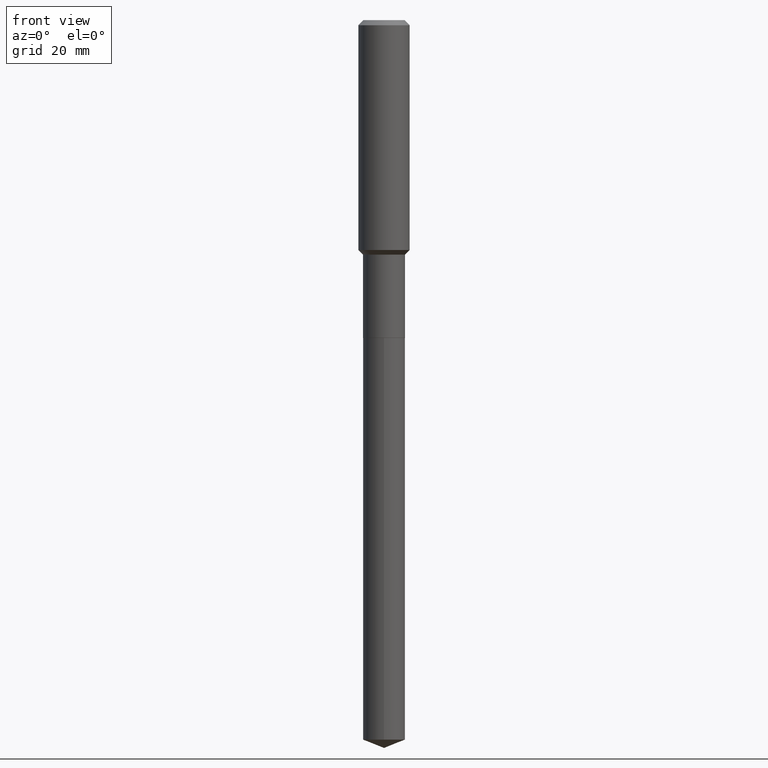
[diagram: clean part render]
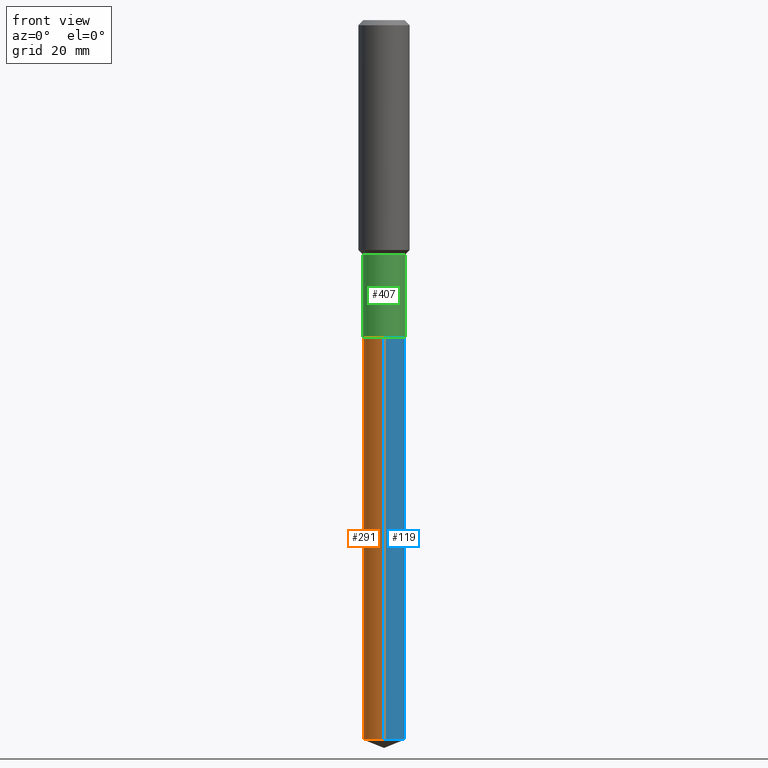
[diagram: same view with three faces highlighted in distinct colors, each labeled with its STEP entity id]
A machine part, front view with three faces highlighted in distinct colors.
Their STEP definitions:

[orange] entity #291 — the highlighted cylindrical surface (edge-blend (fillet) strip) has radius 4.0996 mm, axis along (-0, 0, 1).
#47 = EDGE_CURVE ( 'NONE', #121, #124, #317, .T. ) ;
#49 = CARTESIAN_POINT ( 'NONE',  ( 1.351579263302643101E-28, -1.929732669424208428E-14, -5.526922849235747393 ) ) ;
#51 = AXIS2_PLACEMENT_3D ( 'NONE', #342, #488, #304 ) ;
#59 = CIRCLE ( 'NONE', #192, 0.1613999999999999879 ) ;
#84 = VERTEX_POINT ( 'NONE', #482 ) ;
#106 = CARTESIAN_POINT ( 'NONE',  ( -1.127050176178428435E-15, -0.1614000000000193058, -5.526922849235746504 ) ) ;
#121 = VERTEX_POINT ( 'NONE', #325 ) ;
#124 = VERTEX_POINT ( 'NONE', #106 ) ;
#166 = DIRECTION ( 'NONE',  ( -6.982962677686266711E-15, -1.000000000000000000, 6.770379166454184154E-15 ) ) ;
#172 = ORIENTED_EDGE ( 'NONE', *, *, #361, .F. ) ;
#190 = ORIENTED_EDGE ( 'NONE', *, *, #333, .T. ) ;
#192 = AXIS2_PLACEMENT_3D ( 'NONE', #472, #283, #464 ) ;
#214 = VECTOR ( 'NONE', #414, 39.37007874015748143 ) ;
#230 = CARTESIAN_POINT ( 'NONE',  ( 1.146815975516860976E-15, 0.1613999999999914392, -2.440899999999999626 ) ) ;
#231 = EDGE_LOOP ( 'NONE', ( #172, #392, #190, #303 ) ) ;
#264 = LINE ( 'NONE', #230, #214 ) ;
#268 = LINE ( 'NONE', #411, #334 ) ;
#270 = CARTESIAN_POINT ( 'NONE',  ( 1.146815975516936904E-15, 0.1613999999999914392, -2.440899999999999626 ) ) ;
#283 = DIRECTION ( 'NONE',  ( -2.445428369358333970E-29, 3.491539246680648506E-15, 1.000000000000000000 ) ) ;
#291 = ADVANCED_FACE ( 'NONE', ( #418 ), #335, .T. ) ;
#301 = DIRECTION ( 'NONE',  ( -2.445428369358333970E-29, 3.491539246680648506E-15, 1.000000000000000000 ) ) ;
#303 = ORIENTED_EDGE ( 'NONE', *, *, #427, .F. ) ;
#304 = DIRECTION ( 'NONE',  ( -6.982962677686266711E-15, -1.000000000000000000, 3.385189583227092077E-15 ) ) ;
#317 = CIRCLE ( 'NONE', #381, 0.1613999999999999879 ) ;
#325 = CARTESIAN_POINT ( 'NONE',  ( 1.146815975516936707E-15, 0.1613999999999807256, -5.526922849235749169 ) ) ;
#333 = EDGE_CURVE ( 'NONE', #124, #84, #268, .T. ) ;
#334 = VECTOR ( 'NONE', #301, 39.37007874015748143 ) ;
#335 = CYLINDRICAL_SURFACE ( 'NONE', #51, 0.1613999999999999879 ) ;
#342 = CARTESIAN_POINT ( 'NONE',  ( 5.969144809017297917E-29, -8.522356799982231388E-15, -2.440899999999999181 ) ) ;
#347 = DIRECTION ( 'NONE',  ( -2.445428369358333970E-29, 3.491539246680648506E-15, 1.000000000000000000 ) ) ;
#361 = EDGE_CURVE ( 'NONE', #121, #394, #264, .T. ) ;
#381 = AXIS2_PLACEMENT_3D ( 'NONE', #49, #347, #166 ) ;
#392 = ORIENTED_EDGE ( 'NONE', *, *, #47, .T. ) ;
#394 = VERTEX_POINT ( 'NONE', #270 ) ;
#411 = CARTESIAN_POINT ( 'NONE',  ( -1.127050176178503574E-15, -0.1614000000000085089, -2.440899999999998737 ) ) ;
#414 = DIRECTION ( 'NONE',  ( -2.445428369358333970E-29, 3.491539246680648506E-15, 1.000000000000000000 ) ) ;
#418 = FACE_OUTER_BOUND ( 'NONE', #231, .T. ) ;
#427 = EDGE_CURVE ( 'NONE', #394, #84, #59, .T. ) ;
#464 = DIRECTION ( 'NONE',  ( -6.982962677686266711E-15, -1.000000000000000000, 3.385189583227092077E-15 ) ) ;
#472 = CARTESIAN_POINT ( 'NONE',  ( 5.969144809017297917E-29, -8.522356799982231388E-15, -2.440899999999999181 ) ) ;
#482 = CARTESIAN_POINT ( 'NONE',  ( -1.127050176178503574E-15, -0.1614000000000085089, -2.440899999999998737 ) ) ;
#488 = DIRECTION ( 'NONE',  ( -2.445428369358333970E-29, 3.491539246680648506E-15, 1.000000000000000000 ) ) ;

[blue] entity #119 — the highlighted cylindrical surface (edge-blend (fillet) strip) has radius 4.0996 mm, axis along (-0, 0, 1).
#12 = CARTESIAN_POINT ( 'NONE',  ( 1.351579263302643101E-28, -1.929732669424208428E-14, -5.526922849235747393 ) ) ;
#25 = FACE_OUTER_BOUND ( 'NONE', #228, .T. ) ;
#34 = CIRCLE ( 'NONE', #397, 0.1613999999999999879 ) ;
#62 = DIRECTION ( 'NONE',  ( -2.445428369358333970E-29, 3.491539246680648506E-15, 1.000000000000000000 ) ) ;
#63 = EDGE_CURVE ( 'NONE', #124, #121, #237, .T. ) ;
#64 = CYLINDRICAL_SURFACE ( 'NONE', #456, 0.1613999999999999879 ) ;
#84 = VERTEX_POINT ( 'NONE', #482 ) ;
#106 = CARTESIAN_POINT ( 'NONE',  ( -1.127050176178428435E-15, -0.1614000000000193058, -5.526922849235746504 ) ) ;
#119 = ADVANCED_FACE ( 'NONE', ( #25 ), #64, .T. ) ;
#121 = VERTEX_POINT ( 'NONE', #325 ) ;
#124 = VERTEX_POINT ( 'NONE', #106 ) ;
#169 = DIRECTION ( 'NONE',  ( -2.445428369358333970E-29, 3.491539246680648506E-15, 1.000000000000000000 ) ) ;
#214 = VECTOR ( 'NONE', #414, 39.37007874015748143 ) ;
#220 = DIRECTION ( 'NONE',  ( -6.982962677686266711E-15, -1.000000000000000000, 3.385189583227092077E-15 ) ) ;
#228 = EDGE_LOOP ( 'NONE', ( #266, #375, #357, #489 ) ) ;
#230 = CARTESIAN_POINT ( 'NONE',  ( 1.146815975516860976E-15, 0.1613999999999914392, -2.440899999999999626 ) ) ;
#237 = CIRCLE ( 'NONE', #356, 0.1613999999999999879 ) ;
#264 = LINE ( 'NONE', #230, #214 ) ;
#266 = ORIENTED_EDGE ( 'NONE', *, *, #63, .T. ) ;
#268 = LINE ( 'NONE', #411, #334 ) ;
#270 = CARTESIAN_POINT ( 'NONE',  ( 1.146815975516936904E-15, 0.1613999999999914392, -2.440899999999999626 ) ) ;
#301 = DIRECTION ( 'NONE',  ( -2.445428369358333970E-29, 3.491539246680648506E-15, 1.000000000000000000 ) ) ;
#309 = DIRECTION ( 'NONE',  ( -2.445428369358333970E-29, 3.491539246680648506E-15, 1.000000000000000000 ) ) ;
#325 = CARTESIAN_POINT ( 'NONE',  ( 1.146815975516936707E-15, 0.1613999999999807256, -5.526922849235749169 ) ) ;
#332 = DIRECTION ( 'NONE',  ( -6.982962677686266711E-15, -1.000000000000000000, 6.770379166454184154E-15 ) ) ;
#333 = EDGE_CURVE ( 'NONE', #124, #84, #268, .T. ) ;
#334 = VECTOR ( 'NONE', #301, 39.37007874015748143 ) ;
#343 = CARTESIAN_POINT ( 'NONE',  ( 5.969144809017297917E-29, -8.522356799982231388E-15, -2.440899999999999181 ) ) ;
#356 = AXIS2_PLACEMENT_3D ( 'NONE', #12, #169, #332 ) ;
#357 = ORIENTED_EDGE ( 'NONE', *, *, #412, .F. ) ;
#361 = EDGE_CURVE ( 'NONE', #121, #394, #264, .T. ) ;
#375 = ORIENTED_EDGE ( 'NONE', *, *, #361, .T. ) ;
#394 = VERTEX_POINT ( 'NONE', #270 ) ;
#397 = AXIS2_PLACEMENT_3D ( 'NONE', #343, #309, #461 ) ;
#398 = CARTESIAN_POINT ( 'NONE',  ( 5.969144809017297917E-29, -8.522356799982231388E-15, -2.440899999999999181 ) ) ;
#411 = CARTESIAN_POINT ( 'NONE',  ( -1.127050176178503574E-15, -0.1614000000000085089, -2.440899999999998737 ) ) ;
#412 = EDGE_CURVE ( 'NONE', #84, #394, #34, .T. ) ;
#414 = DIRECTION ( 'NONE',  ( -2.445428369358333970E-29, 3.491539246680648506E-15, 1.000000000000000000 ) ) ;
#456 = AXIS2_PLACEMENT_3D ( 'NONE', #398, #62, #220 ) ;
#461 = DIRECTION ( 'NONE',  ( -6.982962677686266711E-15, -1.000000000000000000, 3.385189583227092077E-15 ) ) ;
#482 = CARTESIAN_POINT ( 'NONE',  ( -1.127050176178503574E-15, -0.1614000000000085089, -2.440899999999998737 ) ) ;
#489 = ORIENTED_EDGE ( 'NONE', *, *, #333, .F. ) ;

[green] entity #407 — the highlighted cylindrical surface (edge-blend (fillet) strip) has radius 4.0996 mm, axis along (-0, 0, 1).
#27 = DIRECTION ( 'NONE',  ( -2.445468806185136597E-29, 3.491481338843145583E-15, 1.000000000000000000 ) ) ;
#32 = ORIENTED_EDGE ( 'NONE', *, *, #243, .T. ) ;
#39 = ORIENTED_EDGE ( 'NONE', *, *, #460, .T. ) ;
#45 = CARTESIAN_POINT ( 'NONE',  ( -0.1614000000000000157, -6.259139666370332882E-15, -2.440399999999999014 ) ) ;
#70 = CARTESIAN_POINT ( 'NONE',  ( 0.1614000000000000157, -9.647661235491372820E-15, -2.440399999999999014 ) ) ;
#91 = ORIENTED_EDGE ( 'NONE', *, *, #207, .F. ) ;
#108 = DIRECTION ( 'NONE',  ( 1.000000000000000000, -6.982962677686265133E-15, 0.000000000000000000 ) ) ;
#122 = CARTESIAN_POINT ( 'NONE',  ( 0.1613999999999999047, -7.418350400640025199E-15, -1.801899999999999169 ) ) ;
#125 = DIRECTION ( 'NONE',  ( -2.445468806185136597E-29, 3.491481338843145583E-15, 1.000000000000000000 ) ) ;
#127 = AXIS2_PLACEMENT_3D ( 'NONE', #459, #125, #383 ) ;
#161 = FACE_OUTER_BOUND ( 'NONE', #468, .T. ) ;
#165 = AXIS2_PLACEMENT_3D ( 'NONE', #401, #27, #368 ) ;
#183 = CIRCLE ( 'NONE', #438, 0.1614000000000000157 ) ;
#201 = CARTESIAN_POINT ( 'NONE',  ( -0.1613999999999999602, 1.146815975516801417E-15, -7.939161235671416085E-30 ) ) ;
#207 = EDGE_CURVE ( 'NONE', #278, #330, #295, .T. ) ;
#236 = LINE ( 'NONE', #201, #486 ) ;
#243 = EDGE_CURVE ( 'NONE', #265, #251, #183, .T. ) ;
#251 = VERTEX_POINT ( 'NONE', #70 ) ;
#265 = VERTEX_POINT ( 'NONE', #45 ) ;
#278 = VERTEX_POINT ( 'NONE', #421 ) ;
#279 = CARTESIAN_POINT ( 'NONE',  ( 0.1613999999999999602, -1.127050176178562936E-15, 7.870149316134637915E-30 ) ) ;
#294 = DIRECTION ( 'NONE',  ( -2.445468806185136597E-29, 3.491481338843145583E-15, 1.000000000000000000 ) ) ;
#295 = CIRCLE ( 'NONE', #165, 0.1613999999999999047 ) ;
#308 = CYLINDRICAL_SURFACE ( 'NONE', #127, 0.1613999999999999602 ) ;
#330 = VERTEX_POINT ( 'NONE', #122 ) ;
#344 = LINE ( 'NONE', #279, #348 ) ;
#348 = VECTOR ( 'NONE', #431, 39.37007874015748143 ) ;
#368 = DIRECTION ( 'NONE',  ( 1.000000000000000000, -6.982962677686269866E-15, 0.000000000000000000 ) ) ;
#369 = EDGE_CURVE ( 'NONE', #265, #278, #236, .T. ) ;
#373 = ORIENTED_EDGE ( 'NONE', *, *, #369, .F. ) ;
#380 = DIRECTION ( 'NONE',  ( -2.445468806185136877E-29, 3.491481338843145188E-15, 1.000000000000000000 ) ) ;
#383 = DIRECTION ( 'NONE',  ( 1.000000000000000000, -6.982962677686265133E-15, 4.876176775795935232E-29 ) ) ;
#401 = CARTESIAN_POINT ( 'NONE',  ( 4.406490241864995269E-29, -6.291300224461461475E-15, -1.801899999999999169 ) ) ;
#407 = ADVANCED_FACE ( 'NONE', ( #161 ), #308, .T. ) ;
#421 = CARTESIAN_POINT ( 'NONE',  ( -0.1613999999999999047, -6.259139666370333671E-15, -1.801899999999999169 ) ) ;
#431 = DIRECTION ( 'NONE',  ( -2.445468806185136877E-29, 3.491481338843145188E-15, 1.000000000000000000 ) ) ;
#436 = CARTESIAN_POINT ( 'NONE',  ( 5.967922074614205116E-29, -8.520611059312809095E-15, -2.440399999999999014 ) ) ;
#438 = AXIS2_PLACEMENT_3D ( 'NONE', #436, #294, #108 ) ;
#459 = CARTESIAN_POINT ( 'NONE',  ( 0.000000000000000000, 0.000000000000000000, 0.000000000000000000 ) ) ;
#460 = EDGE_CURVE ( 'NONE', #251, #330, #344, .T. ) ;
#468 = EDGE_LOOP ( 'NONE', ( #373, #32, #39, #91 ) ) ;
#486 = VECTOR ( 'NONE', #380, 39.37007874015748143 ) ;